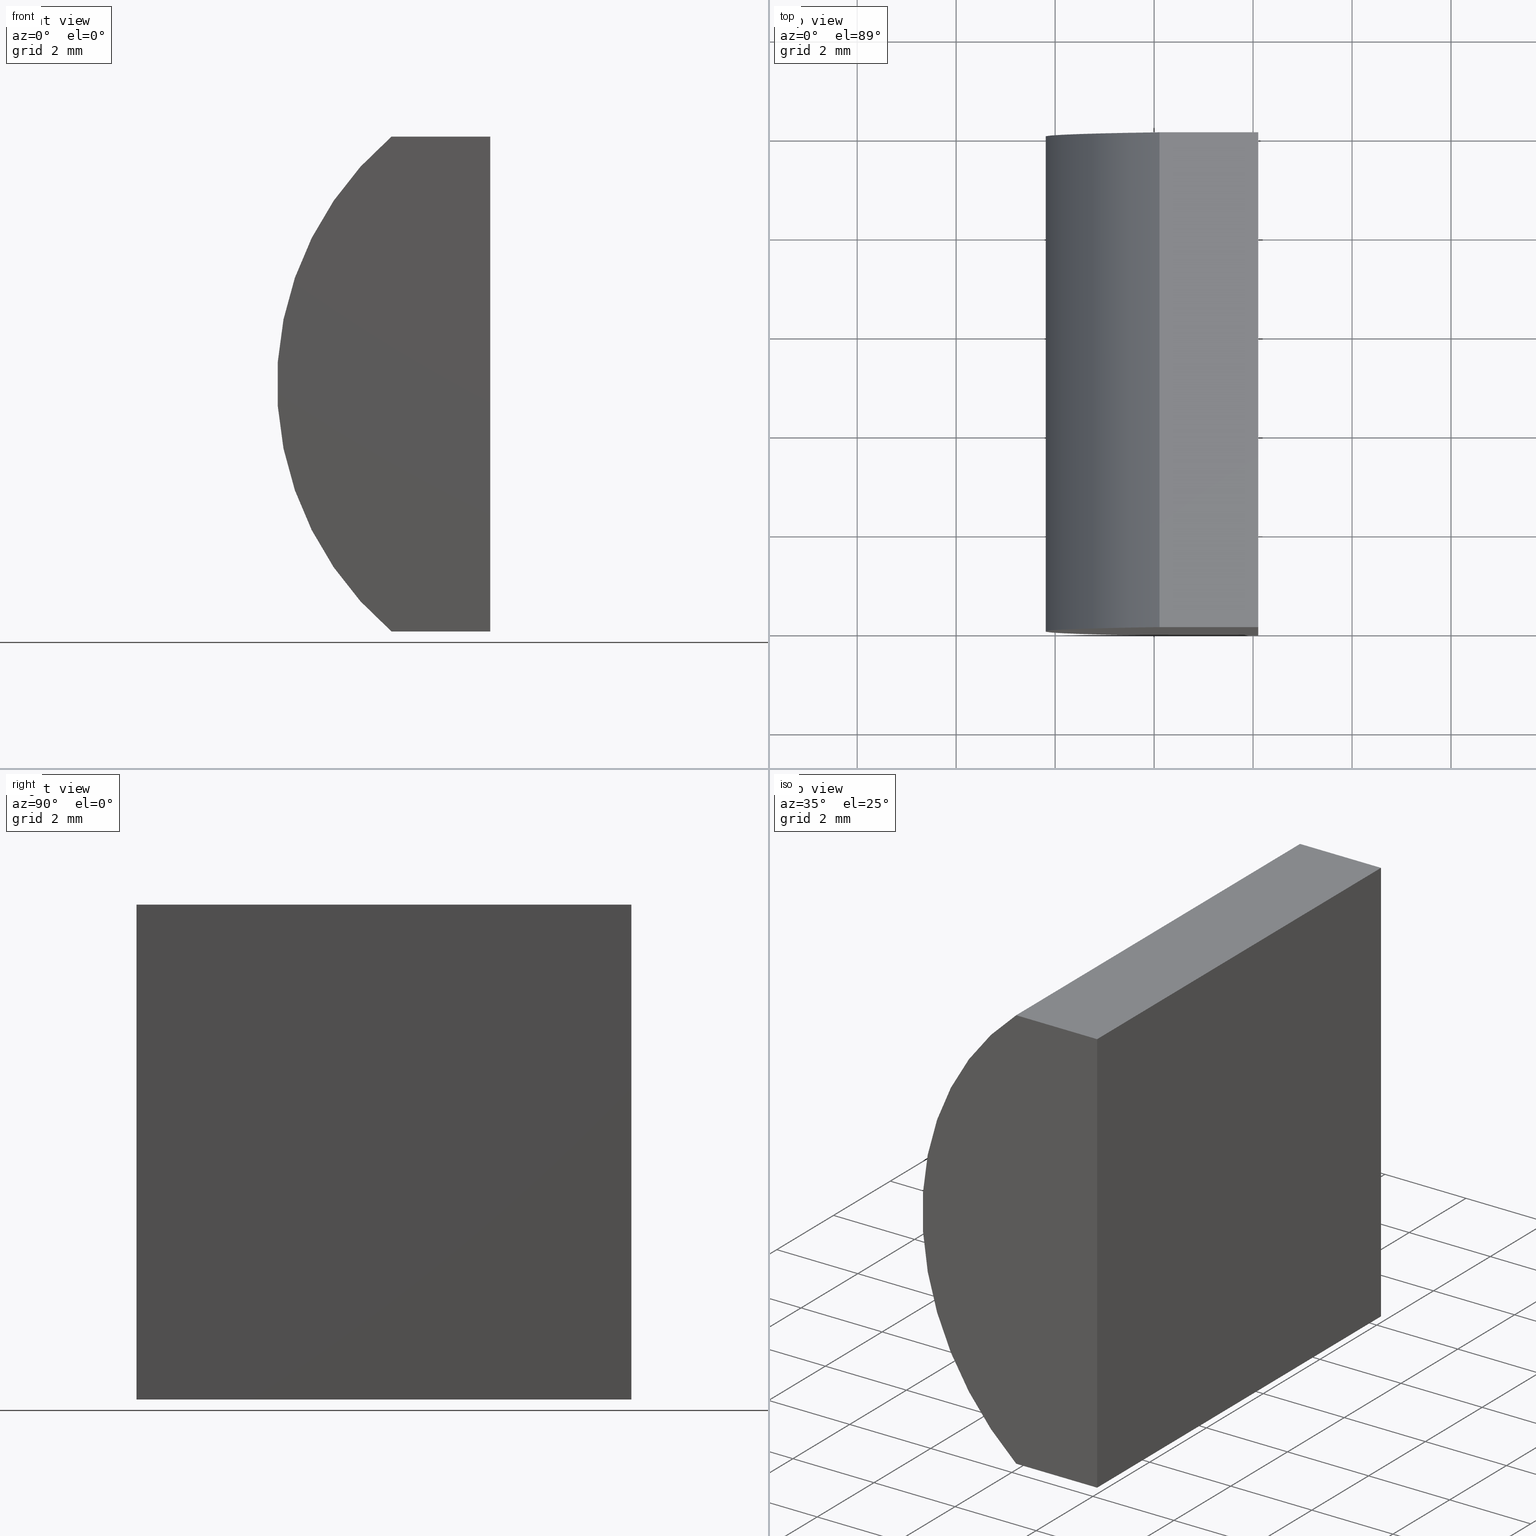
[diagram: canonical four-view strip — front | top / right | iso, engineering-drawing reading convention]
A machine part, canonical four-view strip (front | top / right | iso — engineering-drawing reading convention). The complete STEP part file that produces these views, byte-faithful:
ISO-10303-21;
HEADER;
FILE_DESCRIPTION (( 'STEP AP214' ),
    '1' );
FILE_NAME ('155007.STEP',
    '2019-06-14T07:08:48',
    ( 'user' ),
    ( '΢���й�' ),
    'SwSTEP 2.0',
    'SolidWorks 2016',
    '' );
FILE_SCHEMA (( 'AUTOMOTIVE_DESIGN' ));
ENDSEC;

DATA;
#1 = AXIS2_PLACEMENT_3D ( 'NONE', #145, #119, #155 ) ;
#2 = CARTESIAN_POINT ( 'NONE',  ( 4.355204334851265500, 0.0000000000000000000, 4.286263797015675000E-017 ) ) ;
#3 = CARTESIAN_POINT ( 'NONE',  ( 0.1086056959403540700, 0.0000000000000000000, 5.000000000000000000 ) ) ;
#4 = CARTESIAN_POINT ( 'NONE',  ( 2.105204334851262800, 10.00000000000000000, -5.000000000000001800 ) ) ;
#5 = CARTESIAN_POINT ( 'NONE',  ( 0.0000000000000000000, 0.0000000000000000000, 0.0000000000000000000 ) ) ;
#6 = ORIENTED_EDGE ( 'NONE', *, *, #15, .T. ) ;
#7 = VECTOR ( 'NONE', #112, 1000.000000000000000 ) ;
#8 = STYLED_ITEM ( 'NONE', ( #197 ), #68 ) ;
#9 = ADVANCED_FACE ( 'NONE', ( #183 ), #93, .F. ) ;
#10 = DIRECTION ( 'NONE',  ( 0.0000000000000000000, 0.0000000000000000000, -1.000000000000000000 ) ) ;
#11 = ORIENTED_EDGE ( 'NONE', *, *, #182, .T. ) ;
#12 = VECTOR ( 'NONE', #146, 1000.000000000000000 ) ;
#13 = ORIENTED_EDGE ( 'NONE', *, *, #198, .T. ) ;
#14 = CARTESIAN_POINT ( 'NONE',  ( 0.1086056959403551600, 10.00000000000000000, -5.000000000000000000 ) ) ;
#15 = EDGE_CURVE ( 'NONE', #167, #79, #118, .T. ) ;
#16 = PLANE ( 'NONE',  #52 ) ;
#17 = LINE ( 'NONE', #46, #158 ) ;
#18 = DIRECTION ( 'NONE',  ( 0.0000000000000000000, 1.000000000000000000, 0.0000000000000000000 ) ) ;
#19 = FILL_AREA_STYLE ('',( #121 ) ) ;
#20 = DIRECTION ( 'NONE',  ( -0.0000000000000000000, -1.000000000000000000, -0.0000000000000000000 ) ) ;
#21 = UNCERTAINTY_MEASURE_WITH_UNIT (LENGTH_MEASURE( 1.000000000000000100E-005 ), #81, 'distance_accuracy_value', 'NONE');
#22 = CARTESIAN_POINT ( 'NONE',  ( 4.355204334851265500, 10.00000000000000000, 4.286263797015675000E-017 ) ) ;
#23 = PLANE ( 'NONE',  #38 ) ;
#24 = FACE_OUTER_BOUND ( 'NONE', #116, .T. ) ;
#25 = CARTESIAN_POINT ( 'NONE',  ( 0.1086056959403551600, 10.00000000000000000, -5.000000000000000000 ) ) ;
#26 = AXIS2_PLACEMENT_3D ( 'NONE', #5, #142, #63 ) ;
#27 = STYLED_ITEM ( 'NONE', ( #122 ), #126 ) ;
#28 = CARTESIAN_POINT ( 'NONE',  ( 2.105204334851262800, 10.00000000000000000, -5.000000000000001800 ) ) ;
#29 = EDGE_CURVE ( 'NONE', #173, #200, #134, .T. ) ;
#30 = DIRECTION ( 'NONE',  ( 3.035766082959411900E-016, 0.0000000000000000000, 1.000000000000000000 ) ) ;
#31 = EDGE_LOOP ( 'NONE', ( #202, #48, #90, #127 ) ) ;
#32 = CARTESIAN_POINT ( 'NONE',  ( 0.1086056959403540700, 10.00000000000000000, 5.000000000000000000 ) ) ;
#33 = DIRECTION ( 'NONE',  ( 0.0000000000000000000, 0.0000000000000000000, -1.000000000000000000 ) ) ;
#34 = APPLICATION_CONTEXT ( 'automotive_design' ) ;
#35 = AXIS2_PLACEMENT_3D ( 'NONE', #105, #136, #10 ) ;
#36 = DIRECTION ( 'NONE',  ( -3.035766082959411900E-016, -0.0000000000000000000, -1.000000000000000000 ) ) ;
#37 = SURFACE_STYLE_USAGE ( .BOTH. , #163 ) ;
#38 = AXIS2_PLACEMENT_3D ( 'NONE', #2, #159, #97 ) ;
#39 = SURFACE_STYLE_FILL_AREA ( #19 ) ;
#40 = ORIENTED_EDGE ( 'NONE', *, *, #144, .T. ) ;
#41 = VECTOR ( 'NONE', #169, 1000.000000000000000 ) ;
#42 = ORIENTED_EDGE ( 'NONE', *, *, #92, .T. ) ;
#43 = CLOSED_SHELL ( 'NONE', ( #154, #9, #201, #143, #71, #132 ) ) ;
#44 = EDGE_CURVE ( 'NONE', #51, #200, #138, .T. ) ;
#45 =( GEOMETRIC_REPRESENTATION_CONTEXT ( 3 ) GLOBAL_UNCERTAINTY_ASSIGNED_CONTEXT ( ( #56 ) ) GLOBAL_UNIT_ASSIGNED_CONTEXT ( ( #78, #61, #188 ) ) REPRESENTATION_CONTEXT ( 'NONE', 'WORKASPACE' ) );
#46 = CARTESIAN_POINT ( 'NONE',  ( 2.105204334851265900, 10.00000000000000000, 5.000000000000000000 ) ) ;
#47 = CARTESIAN_POINT ( 'NONE',  ( 4.355204334851265500, 10.00000000000000000, 4.286263797015675000E-017 ) ) ;
#48 = ORIENTED_EDGE ( 'NONE', *, *, #44, .F. ) ;
#49 =( LENGTH_UNIT ( ) NAMED_UNIT ( * ) SI_UNIT ( .MILLI., .METRE. ) );
#50 = ORIENTED_EDGE ( 'NONE', *, *, #191, .T. ) ;
#51 = VERTEX_POINT ( 'NONE', #133 ) ;
#52 = AXIS2_PLACEMENT_3D ( 'NONE', #25, #55, #176 ) ;
#53 = DIRECTION ( 'NONE',  ( -0.0000000000000000000, -1.000000000000000000, -0.0000000000000000000 ) ) ;
#54 = LINE ( 'NONE', #135, #85 ) ;
#55 = DIRECTION ( 'NONE',  ( 8.688393561777910800E-016, -0.0000000000000000000, 1.000000000000000000 ) ) ;
#56 = UNCERTAINTY_MEASURE_WITH_UNIT (LENGTH_MEASURE( 1.000000000000000100E-005 ), #78, 'distance_accuracy_value', 'NONE');
#57 = VECTOR ( 'NONE', #20, 1000.000000000000000 ) ;
#58 = ORIENTED_EDGE ( 'NONE', *, *, #194, .T. ) ;
#59 = APPLICATION_PROTOCOL_DEFINITION ( 'draft international standard', 'automotive_design', 1998, #195 ) ;
#60 = FACE_OUTER_BOUND ( 'NONE', #186, .T. ) ;
#61 =( NAMED_UNIT ( * ) PLANE_ANGLE_UNIT ( ) SI_UNIT ( $, .RADIAN. ) );
#62 = EDGE_LOOP ( 'NONE', ( #40, #83, #170, #11 ) ) ;
#63 = DIRECTION ( 'NONE',  ( 1.000000000000000000, 0.0000000000000000000, 0.0000000000000000000 ) ) ;
#64 = LINE ( 'NONE', #87, #41 ) ;
#65 = SURFACE_SIDE_STYLE ('',( #147 ) ) ;
#66 =( NAMED_UNIT ( * ) SI_UNIT ( $, .STERADIAN. ) SOLID_ANGLE_UNIT ( ) );
#67 = LINE ( 'NONE', #153, #74 ) ;
#68 = ADVANCED_BREP_SHAPE_REPRESENTATION ( '155007', ( #126, #26 ), #164 ) ;
#69 = FILL_AREA_STYLE ('',( #171 ) ) ;
#70 = PRESENTATION_LAYER_ASSIGNMENT (  '', '', ( #8 ) ) ;
#71 = ADVANCED_FACE ( 'NONE', ( #24 ), #172, .T. ) ;
#72 = DIRECTION ( 'NONE',  ( -0.0000000000000000000, -1.000000000000000000, -0.0000000000000000000 ) ) ;
#73 = ORIENTED_EDGE ( 'NONE', *, *, #92, .F. ) ;
#74 = VECTOR ( 'NONE', #80, 1000.000000000000000 ) ;
#75 = DIRECTION ( 'NONE',  ( -1.000000000000000000, 0.0000000000000000000, 3.035766082959411900E-016 ) ) ;
#76 =( NAMED_UNIT ( * ) PLANE_ANGLE_UNIT ( ) SI_UNIT ( $, .RADIAN. ) );
#77 = EDGE_LOOP ( 'NONE', ( #166, #177, #130, #82 ) ) ;
#78 =( LENGTH_UNIT ( ) NAMED_UNIT ( * ) SI_UNIT ( .MILLI., .METRE. ) );
#79 = VERTEX_POINT ( 'NONE', #204 ) ;
#80 = DIRECTION ( 'NONE',  ( 1.000000000000000000, 0.0000000000000000000, 0.0000000000000000000 ) ) ;
#81 =( LENGTH_UNIT ( ) NAMED_UNIT ( * ) SI_UNIT ( .MILLI., .METRE. ) );
#82 = ORIENTED_EDGE ( 'NONE', *, *, #160, .F. ) ;
#83 = ORIENTED_EDGE ( 'NONE', *, *, #179, .F. ) ;
#84 = EDGE_CURVE ( 'NONE', #98, #152, #64, .T. ) ;
#85 = VECTOR ( 'NONE', #104, 1000.000000000000000 ) ;
#86 = CARTESIAN_POINT ( 'NONE',  ( 0.1086056959403551600, 0.0000000000000000000, -5.000000000000000000 ) ) ;
#87 = CARTESIAN_POINT ( 'NONE',  ( 0.1086056959403551600, 10.00000000000000000, -5.000000000000000000 ) ) ;
#88 = MECHANICAL_DESIGN_GEOMETRIC_PRESENTATION_REPRESENTATION (  '', ( #27 ), #45 ) ;
#89 =( NAMED_UNIT ( * ) SI_UNIT ( $, .STERADIAN. ) SOLID_ANGLE_UNIT ( ) );
#90 = ORIENTED_EDGE ( 'NONE', *, *, #191, .F. ) ;
#91 = ORIENTED_EDGE ( 'NONE', *, *, #194, .F. ) ;
#92 = EDGE_CURVE ( 'NONE', #51, #174, #67, .T. ) ;
#93 = PLANE ( 'NONE',  #203 ) ;
#94 = PRODUCT_CONTEXT ( 'NONE', #195, 'mechanical' ) ;
#95 = VECTOR ( 'NONE', #111, 1000.000000000000000 ) ;
#96 = ORIENTED_EDGE ( 'NONE', *, *, #44, .T. ) ;
#97 = DIRECTION ( 'NONE',  ( 0.0000000000000000000, -0.0000000000000000000, 1.000000000000000000 ) ) ;
#98 = VERTEX_POINT ( 'NONE', #189 ) ;
#99 = FACE_OUTER_BOUND ( 'NONE', #31, .T. ) ;
#100 = PRODUCT ( '155007', '155007', '', ( #94 ) ) ;
#101 = CARTESIAN_POINT ( 'NONE',  ( 0.1086056959403551600, 0.0000000000000000000, -5.000000000000000000 ) ) ;
#102 = SHAPE_DEFINITION_REPRESENTATION ( #181, #68 ) ;
#103 = CARTESIAN_POINT ( 'NONE',  ( 0.1086056959403551600, 10.00000000000000000, -5.000000000000000000 ) ) ;
#104 = DIRECTION ( 'NONE',  ( -0.0000000000000000000, -1.000000000000000000, -0.0000000000000000000 ) ) ;
#105 = CARTESIAN_POINT ( 'NONE',  ( 4.355204334851265500, 10.00000000000000000, 4.286263797015675000E-017 ) ) ;
#106 = SURFACE_STYLE_USAGE ( .BOTH. , #65 ) ;
#107 = FACE_OUTER_BOUND ( 'NONE', #62, .T. ) ;
#108 = CARTESIAN_POINT ( 'NONE',  ( 2.105204334851262800, 0.0000000000000000000, -5.000000000000001800 ) ) ;
#109 =( GEOMETRIC_REPRESENTATION_CONTEXT ( 3 ) GLOBAL_UNCERTAINTY_ASSIGNED_CONTEXT ( ( #137 ) ) GLOBAL_UNIT_ASSIGNED_CONTEXT ( ( #49, #76, #89 ) ) REPRESENTATION_CONTEXT ( 'NONE', 'WORKASPACE' ) );
#110 = FACE_OUTER_BOUND ( 'NONE', #77, .T. ) ;
#111 = DIRECTION ( 'NONE',  ( -1.000000000000000000, -0.0000000000000000000, 8.688393561777910800E-016 ) ) ;
#112 = DIRECTION ( 'NONE',  ( 1.000000000000000000, 0.0000000000000000000, 0.0000000000000000000 ) ) ;
#113 = VECTOR ( 'NONE', #36, 1000.000000000000000 ) ;
#114 = PRODUCT_DEFINITION_CONTEXT ( 'detailed design', #34, 'design' ) ;
#115 = LINE ( 'NONE', #4, #113 ) ;
#116 = EDGE_LOOP ( 'NONE', ( #50, #42, #13, #123 ) ) ;
#117 = COLOUR_RGB ( '',1.000000000000000000, 1.000000000000000000, 1.000000000000000000 ) ;
#118 = LINE ( 'NONE', #108, #12 ) ;
#119 = DIRECTION ( 'NONE',  ( 0.0000000000000000000, 1.000000000000000000, 0.0000000000000000000 ) ) ;
#120 = LINE ( 'NONE', #86, #95 ) ;
#121 = FILL_AREA_STYLE_COLOUR ( '', #165 ) ;
#122 = PRESENTATION_STYLE_ASSIGNMENT (( #37 ) ) ;
#123 = ORIENTED_EDGE ( 'NONE', *, *, #84, .T. ) ;
#124 = DIRECTION ( 'NONE',  ( 0.0000000000000000000, 1.000000000000000000, 0.0000000000000000000 ) ) ;
#125 = CYLINDRICAL_SURFACE ( 'NONE', #35, 6.559999999999999600 ) ;
#126 = MANIFOLD_SOLID_BREP ( '͹̨-����1', #43 ) ;
#127 = ORIENTED_EDGE ( 'NONE', *, *, #179, .T. ) ;
#128 = PRODUCT_DEFINITION_FORMATION_WITH_SPECIFIED_SOURCE ( '�κ�', '', #100, .NOT_KNOWN. ) ;
#129 = LINE ( 'NONE', #3, #7 ) ;
#130 = ORIENTED_EDGE ( 'NONE', *, *, #15, .F. ) ;
#131 = EDGE_LOOP ( 'NONE', ( #149, #91, #73, #96 ) ) ;
#132 = ADVANCED_FACE ( 'NONE', ( #110 ), #23, .F. ) ;
#133 = CARTESIAN_POINT ( 'NONE',  ( 0.1086056959403540700, 10.00000000000000000, 5.000000000000000000 ) ) ;
#134 = CIRCLE ( 'NONE', #1, 6.559999999999999600 ) ;
#135 = CARTESIAN_POINT ( 'NONE',  ( 2.105204334851262800, 10.00000000000000000, -5.000000000000001800 ) ) ;
#136 = DIRECTION ( 'NONE',  ( -0.0000000000000000000, -1.000000000000000000, -0.0000000000000000000 ) ) ;
#137 = UNCERTAINTY_MEASURE_WITH_UNIT (LENGTH_MEASURE( 1.000000000000000100E-005 ), #49, 'distance_accuracy_value', 'NONE');
#138 = LINE ( 'NONE', #151, #178 ) ;
#139 = CARTESIAN_POINT ( 'NONE',  ( 2.105204334851265900, 0.0000000000000000000, 5.000000000000000000 ) ) ;
#140 = CARTESIAN_POINT ( 'NONE',  ( 0.1086056959403540700, 0.0000000000000000000, 5.000000000000000000 ) ) ;
#141 = MECHANICAL_DESIGN_GEOMETRIC_PRESENTATION_REPRESENTATION (  '', ( #8 ), #109 ) ;
#142 = DIRECTION ( 'NONE',  ( 0.0000000000000000000, 0.0000000000000000000, 1.000000000000000000 ) ) ;
#143 = ADVANCED_FACE ( 'NONE', ( #107 ), #16, .F. ) ;
#144 = EDGE_CURVE ( 'NONE', #79, #173, #120, .T. ) ;
#145 = CARTESIAN_POINT ( 'NONE',  ( 4.355204334851265500, 0.0000000000000000000, 4.286263797015675000E-017 ) ) ;
#146 = DIRECTION ( 'NONE',  ( -3.035766082959411900E-016, -0.0000000000000000000, -1.000000000000000000 ) ) ;
#147 = SURFACE_STYLE_FILL_AREA ( #69 ) ;
#148 = DIRECTION ( 'NONE',  ( -1.000000000000000000, 0.0000000000000000000, -0.0000000000000000000 ) ) ;
#149 = ORIENTED_EDGE ( 'NONE', *, *, #160, .T. ) ;
#150 = CARTESIAN_POINT ( 'NONE',  ( 2.105204334851265900, 10.00000000000000000, 5.000000000000000000 ) ) ;
#151 = CARTESIAN_POINT ( 'NONE',  ( 0.1086056959403540700, 10.00000000000000000, 5.000000000000000000 ) ) ;
#152 = VERTEX_POINT ( 'NONE', #14 ) ;
#153 = CARTESIAN_POINT ( 'NONE',  ( 0.1086056959403540700, 10.00000000000000000, 5.000000000000000000 ) ) ;
#154 = ADVANCED_FACE ( 'NONE', ( #99 ), #125, .T. ) ;
#155 = DIRECTION ( 'NONE',  ( 0.0000000000000000000, 0.0000000000000000000, 1.000000000000000000 ) ) ;
#156 = CIRCLE ( 'NONE', #185, 6.559999999999999600 ) ;
#157 = APPLICATION_PROTOCOL_DEFINITION ( 'draft international standard', 'automotive_design', 1998, #34 ) ;
#158 = VECTOR ( 'NONE', #53, 1000.000000000000000 ) ;
#159 = DIRECTION ( 'NONE',  ( 0.0000000000000000000, 1.000000000000000000, 0.0000000000000000000 ) ) ;
#160 = EDGE_CURVE ( 'NONE', #200, #167, #129, .T. ) ;
#161 = PRESENTATION_LAYER_ASSIGNMENT (  '', '', ( #27 ) ) ;
#162 = ORIENTED_EDGE ( 'NONE', *, *, #182, .F. ) ;
#163 = SURFACE_SIDE_STYLE ('',( #39 ) ) ;
#164 =( GEOMETRIC_REPRESENTATION_CONTEXT ( 3 ) GLOBAL_UNCERTAINTY_ASSIGNED_CONTEXT ( ( #21 ) ) GLOBAL_UNIT_ASSIGNED_CONTEXT ( ( #81, #175, #66 ) ) REPRESENTATION_CONTEXT ( 'NONE', 'WORKASPACE' ) );
#165 = COLOUR_RGB ( '',1.000000000000000000, 1.000000000000000000, 1.000000000000000000 ) ;
#166 = ORIENTED_EDGE ( 'NONE', *, *, #29, .F. ) ;
#167 = VERTEX_POINT ( 'NONE', #139 ) ;
#168 = PRODUCT_DEFINITION ( 'δ֪', '', #128, #114 ) ;
#169 = DIRECTION ( 'NONE',  ( -1.000000000000000000, -0.0000000000000000000, 8.688393561777910800E-016 ) ) ;
#170 = ORIENTED_EDGE ( 'NONE', *, *, #84, .F. ) ;
#171 = FILL_AREA_STYLE_COLOUR ( '', #117 ) ;
#172 = PLANE ( 'NONE',  #190 ) ;
#173 = VERTEX_POINT ( 'NONE', #101 ) ;
#174 = VERTEX_POINT ( 'NONE', #150 ) ;
#175 =( NAMED_UNIT ( * ) PLANE_ANGLE_UNIT ( ) SI_UNIT ( $, .RADIAN. ) );
#176 = DIRECTION ( 'NONE',  ( 1.000000000000000000, 0.0000000000000000000, -8.688393561777910800E-016 ) ) ;
#177 = ORIENTED_EDGE ( 'NONE', *, *, #144, .F. ) ;
#178 = VECTOR ( 'NONE', #72, 1000.000000000000000 ) ;
#179 = EDGE_CURVE ( 'NONE', #152, #173, #180, .T. ) ;
#180 = LINE ( 'NONE', #103, #57 ) ;
#181 = PRODUCT_DEFINITION_SHAPE ( 'NONE', 'NONE',  #168 ) ;
#182 = EDGE_CURVE ( 'NONE', #98, #79, #54, .T. ) ;
#183 = FACE_OUTER_BOUND ( 'NONE', #131, .T. ) ;
#184 = PLANE ( 'NONE',  #199 ) ;
#185 = AXIS2_PLACEMENT_3D ( 'NONE', #47, #124, #193 ) ;
#186 = EDGE_LOOP ( 'NONE', ( #6, #162, #196, #58 ) ) ;
#187 = PRODUCT_RELATED_PRODUCT_CATEGORY ( 'part', '', ( #100 ) ) ;
#188 =( NAMED_UNIT ( * ) SI_UNIT ( $, .STERADIAN. ) SOLID_ANGLE_UNIT ( ) );
#189 = CARTESIAN_POINT ( 'NONE',  ( 2.105204334851262800, 10.00000000000000000, -5.000000000000001800 ) ) ;
#190 = AXIS2_PLACEMENT_3D ( 'NONE', #22, #18, #192 ) ;
#191 = EDGE_CURVE ( 'NONE', #152, #51, #156, .T. ) ;
#192 = DIRECTION ( 'NONE',  ( 0.0000000000000000000, -0.0000000000000000000, 1.000000000000000000 ) ) ;
#193 = DIRECTION ( 'NONE',  ( 0.0000000000000000000, 0.0000000000000000000, 1.000000000000000000 ) ) ;
#194 = EDGE_CURVE ( 'NONE', #174, #167, #17, .T. ) ;
#195 = APPLICATION_CONTEXT ( 'automotive_design' ) ;
#196 = ORIENTED_EDGE ( 'NONE', *, *, #198, .F. ) ;
#197 = PRESENTATION_STYLE_ASSIGNMENT (( #106 ) ) ;
#198 = EDGE_CURVE ( 'NONE', #174, #98, #115, .T. ) ;
#199 = AXIS2_PLACEMENT_3D ( 'NONE', #28, #75, #30 ) ;
#200 = VERTEX_POINT ( 'NONE', #140 ) ;
#201 = ADVANCED_FACE ( 'NONE', ( #60 ), #184, .F. ) ;
#202 = ORIENTED_EDGE ( 'NONE', *, *, #29, .T. ) ;
#203 = AXIS2_PLACEMENT_3D ( 'NONE', #32, #33, #148 ) ;
#204 = CARTESIAN_POINT ( 'NONE',  ( 2.105204334851262800, 0.0000000000000000000, -5.000000000000001800 ) ) ;
ENDSEC;
END-ISO-10303-21;
